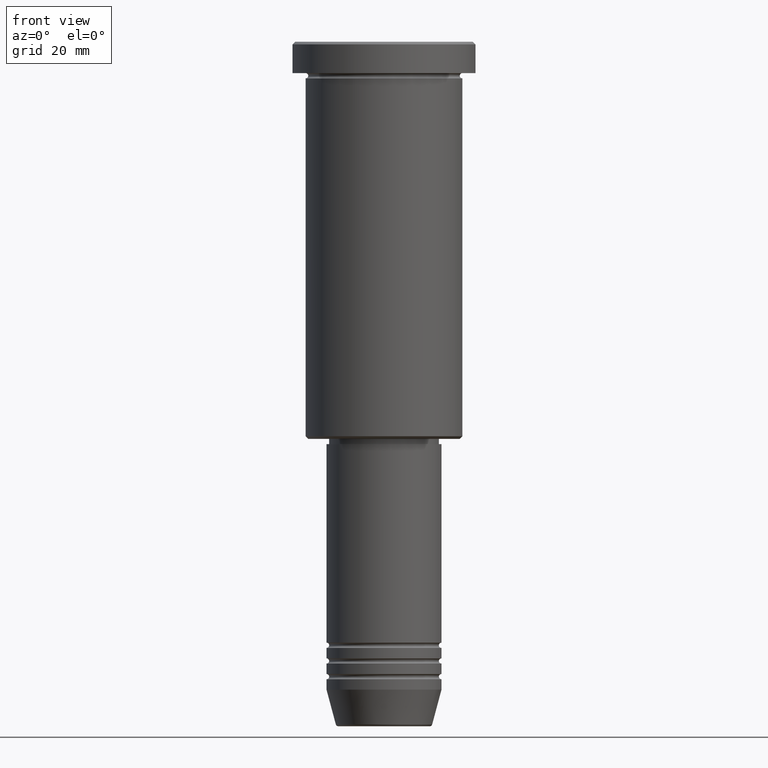
[diagram: clean part render]
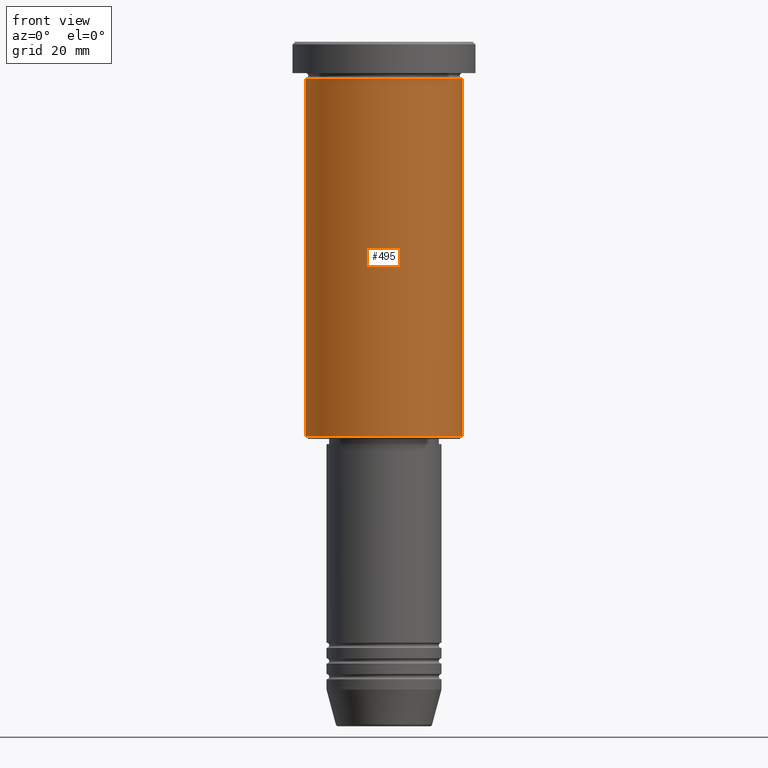
[diagram: same view with one face highlighted and labeled with its STEP entity id]
A machine part, front view. The second image highlights one B-rep face of the part: STEP entity #495.
In plain terms, the highlighted cylindrical surface (partial cylindrical patch) has radius 15 mm, axis along (-0, -0, 1).
Its self-contained STEP definition (entity closure, byte-faithful):
#1 = CARTESIAN_POINT ( 'NONE',  ( -15.00000000000000000, 1.836970198721029589E-15, -75.50000000000000000 ) ) ;
#20 = DIRECTION ( 'NONE',  ( -1.000000000000000000, 0.000000000000000000, 0.000000000000000000 ) ) ;
#81 = VERTEX_POINT ( 'NONE', #559 ) ;
#99 = CARTESIAN_POINT ( 'NONE',  ( 0.000000000000000000, 0.000000000000000000, -6.999999999999995559 ) ) ;
#165 = AXIS2_PLACEMENT_3D ( 'NONE', #99, #1084, #470 ) ;
#195 = CARTESIAN_POINT ( 'NONE',  ( 0.000000000000000000, 0.000000000000000000, 0.000000000000000000 ) ) ;
#211 = EDGE_CURVE ( 'NONE', #618, #526, #793, .T. ) ;
#245 = DIRECTION ( 'NONE',  ( -0.000000000000000000, -0.000000000000000000, 1.000000000000000000 ) ) ;
#309 = CARTESIAN_POINT ( 'NONE',  ( 15.00000000000000000, 0.000000000000000000, 0.000000000000000000 ) ) ;
#353 = ORIENTED_EDGE ( 'NONE', *, *, #211, .F. ) ;
#360 = AXIS2_PLACEMENT_3D ( 'NONE', #1025, #750, #20 ) ;
#470 = DIRECTION ( 'NONE',  ( 1.000000000000000000, 0.000000000000000000, 0.000000000000000000 ) ) ;
#495 = ADVANCED_FACE ( 'NONE', ( #992 ), #1012, .T. ) ;
#526 = VERTEX_POINT ( 'NONE', #1085 ) ;
#527 = EDGE_CURVE ( 'NONE', #618, #758, #571, .T. ) ;
#559 = CARTESIAN_POINT ( 'NONE',  ( 15.00000000000000000, 0.000000000000000000, -6.999999999999995559 ) ) ;
#564 = ORIENTED_EDGE ( 'NONE', *, *, #527, .T. ) ;
#569 = VECTOR ( 'NONE', #245, 1000.000000000000000 ) ;
#571 = CIRCLE ( 'NONE', #360, 15.00000000000000000 ) ;
#618 = VERTEX_POINT ( 'NONE', #1 ) ;
#649 = VECTOR ( 'NONE', #652, 1000.000000000000000 ) ;
#652 = DIRECTION ( 'NONE',  ( -0.000000000000000000, -0.000000000000000000, 1.000000000000000000 ) ) ;
#658 = LINE ( 'NONE', #309, #649 ) ;
#660 = DIRECTION ( 'NONE',  ( -0.000000000000000000, -0.000000000000000000, 1.000000000000000000 ) ) ;
#737 = EDGE_LOOP ( 'NONE', ( #353, #564, #962, #870 ) ) ;
#750 = DIRECTION ( 'NONE',  ( -0.000000000000000000, -0.000000000000000000, 1.000000000000000000 ) ) ;
#758 = VERTEX_POINT ( 'NONE', #831 ) ;
#773 = EDGE_CURVE ( 'NONE', #526, #81, #874, .T. ) ;
#793 = LINE ( 'NONE', #938, #569 ) ;
#831 = CARTESIAN_POINT ( 'NONE',  ( 15.00000000000000000, 0.000000000000000000, -75.50000000000000000 ) ) ;
#870 = ORIENTED_EDGE ( 'NONE', *, *, #773, .F. ) ;
#874 = CIRCLE ( 'NONE', #165, 15.00000000000000000 ) ;
#908 = AXIS2_PLACEMENT_3D ( 'NONE', #195, #660, #1002 ) ;
#938 = CARTESIAN_POINT ( 'NONE',  ( -15.00000000000000000, 1.836970198721029589E-15, 0.000000000000000000 ) ) ;
#962 = ORIENTED_EDGE ( 'NONE', *, *, #1033, .T. ) ;
#992 = FACE_OUTER_BOUND ( 'NONE', #737, .T. ) ;
#1002 = DIRECTION ( 'NONE',  ( 1.000000000000000000, 0.000000000000000000, 0.000000000000000000 ) ) ;
#1012 = CYLINDRICAL_SURFACE ( 'NONE', #908, 15.00000000000000000 ) ;
#1025 = CARTESIAN_POINT ( 'NONE',  ( 0.000000000000000000, 0.000000000000000000, -75.50000000000000000 ) ) ;
#1033 = EDGE_CURVE ( 'NONE', #758, #81, #658, .T. ) ;
#1084 = DIRECTION ( 'NONE',  ( -0.000000000000000000, -0.000000000000000000, 1.000000000000000000 ) ) ;
#1085 = CARTESIAN_POINT ( 'NONE',  ( -15.00000000000000000, 1.836970198721029589E-15, -6.999999999999995559 ) ) ;